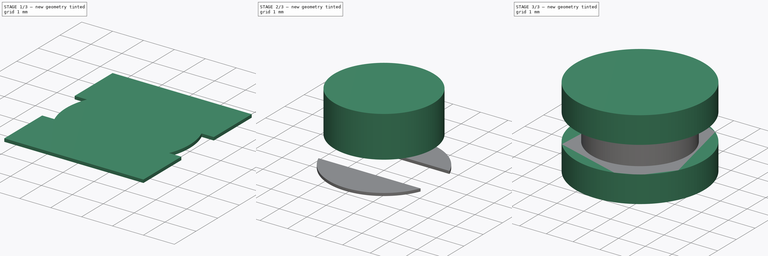
[diagram: build sequence overview — one tinted view per stage of 3, left to right]
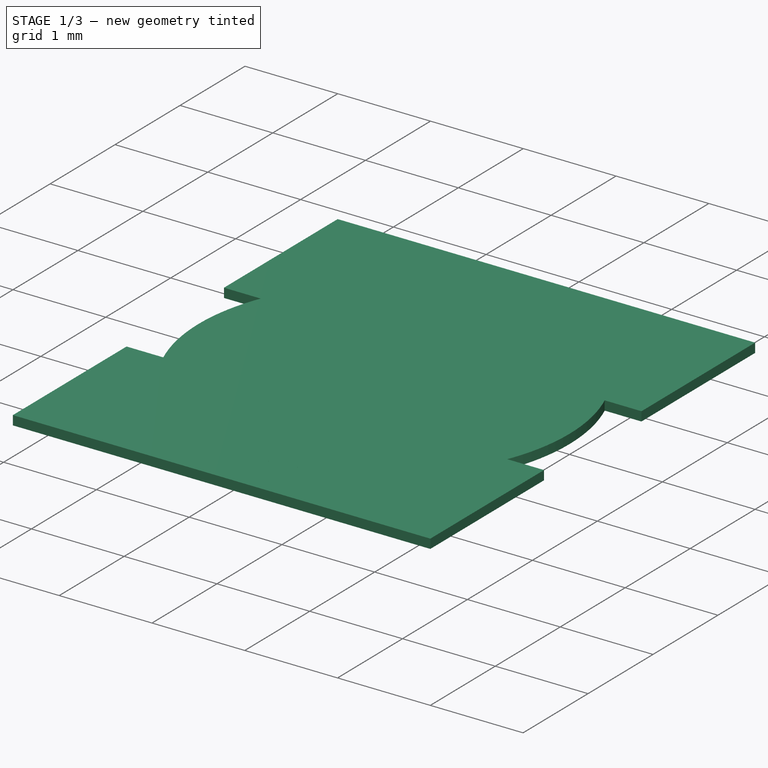
[diagram: stage 1 of 3 — iso view after this stage's code; geometry added in this stage tinted green]
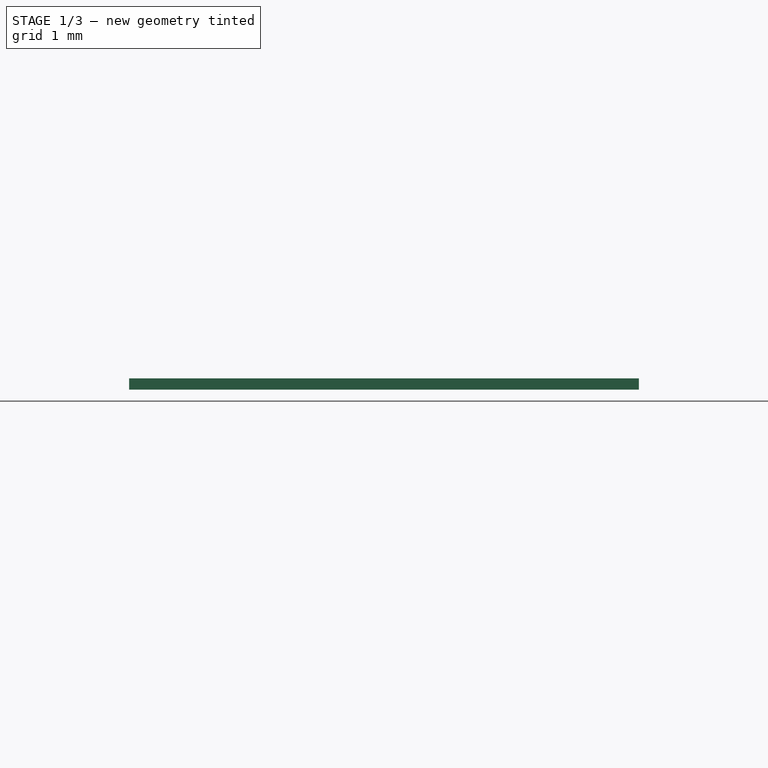
[diagram: stage 1 of 3 — front view after this stage's code; geometry added in this stage tinted green]
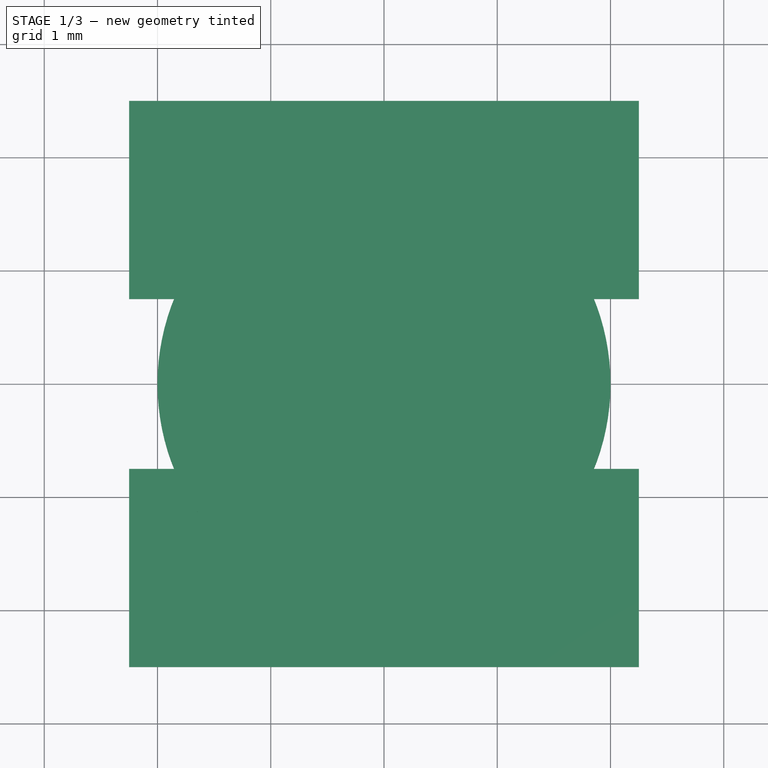
[diagram: stage 1 of 3 — top view after this stage's code; geometry added in this stage tinted green]
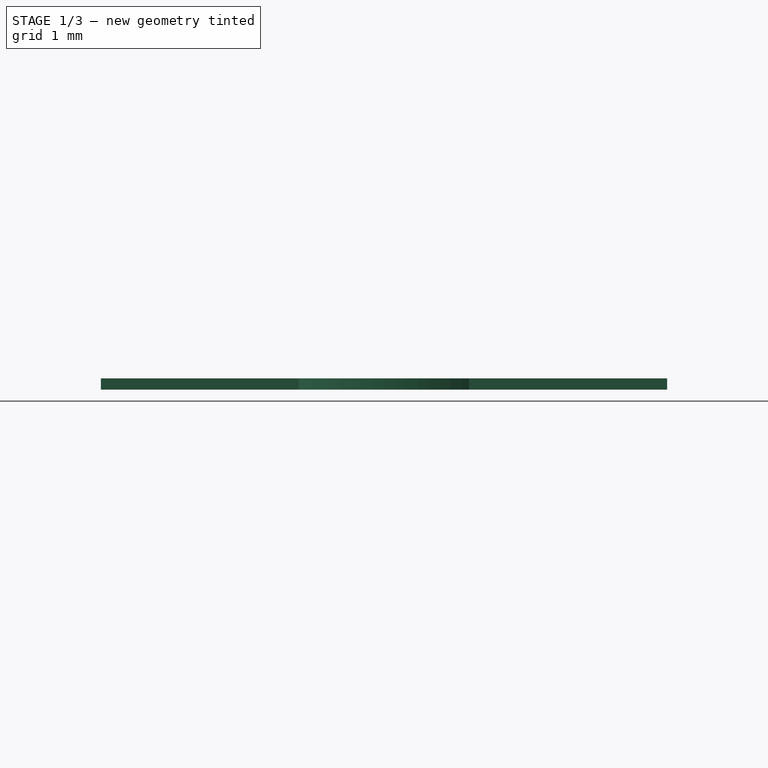
[diagram: stage 1 of 3 — right view after this stage's code; geometry added in this stage tinted green]
FCSTD DOCUMENT  (FreeCAD 0.16R6712 (Git))
Label: L_0403
License: All rights reserved
LicenseURL: http://en.wikipedia.org/wiki/All_rights_reserved
objects: Sketcher::SketchObject×3, PartDesign::Pad×3, Part::Feature×1, Part::Cylinder×1, Part::MultiCommon×1, Part::Compound×1
note: 13 computed .brp shape members not serialized (recipe doc carries the construction recipe); baked Part::Feature solids carry a one-line shape summary decoded from their .brp

FEATURE [Sketcher::SketchObject] Sketch
  sketch-geometry (8):
    g0: LineSegment StartX=-2.25 StartY=2.5 StartZ=0 EndX=2.25 EndY=2.5 EndZ=0
    g1: LineSegment StartX=2.25 StartY=2.5 StartZ=0 EndX=2.25 EndY=0.75 EndZ=0
    g2: LineSegment StartX=2.25 StartY=0.75 StartZ=0 EndX=-2.25 EndY=0.75 EndZ=0
    g3: LineSegment StartX=-2.25 StartY=0.75 StartZ=0 EndX=-2.25 EndY=2.5 EndZ=0
    g4: LineSegment StartX=-2.25 StartY=-0.75 StartZ=0 EndX=2.25 EndY=-0.75 EndZ=0
    g5: LineSegment StartX=2.25 StartY=-0.75 StartZ=0 EndX=2.25 EndY=-2.5 EndZ=0
    g6: LineSegment StartX=2.25 StartY=-2.5 StartZ=0 EndX=-2.25 EndY=-2.5 EndZ=0
    g7: LineSegment StartX=-2.25 StartY=-2.5 StartZ=0 EndX=-2.25 EndY=-0.75 EndZ=0
  constraints (24):
    c: Coincident(g0,g1)
    c: Coincident(g1,g2)
    c: Coincident(g2,g3)
    c: Coincident(g3,g0)
    c: Horizontal(g0)
    c: Horizontal(g2)
    c: Vertical(g1)
    c: Vertical(g3)
    c: Coincident(g4,g5)
    c: Coincident(g5,g6)
    c: Coincident(g6,g7)
    c: Coincident(g7,g4)
    c: Horizontal(g4)
    c: Horizontal(g6)
    c: Vertical(g5)
    c: Vertical(g7)
    c: DistanceX(g0,g0) = 4.5
    c: DistanceY(g1,g1) = 1.75
    c: Symmetric(g0,g0,g-2)
    c: Equal(g4,g0)
    c: Equal(g5,g1)
    c: Symmetric(g4,g4,g-2)
    c: Symmetric(g1,g4,g-1)
    c: DistanceY(g4,g1) = 1.5
FEATURE [PartDesign::Pad] Pad
  Length = 0.1
  Length2 = 100
  Sketch = -> Sketch
  Type = 0
FEATURE [Part::Feature] Pad001001  label="Pad003"
  Placement = pos=(0,0,2.1) rot=(0,0,1;0rad)
  shape: bbox 4.8 x 4.8 x 1 mm, 3 faces (baked)
FEATURE [Part::Cylinder] Cylinder
  Angle = 360
  Height = 0.1
  Radius = 2
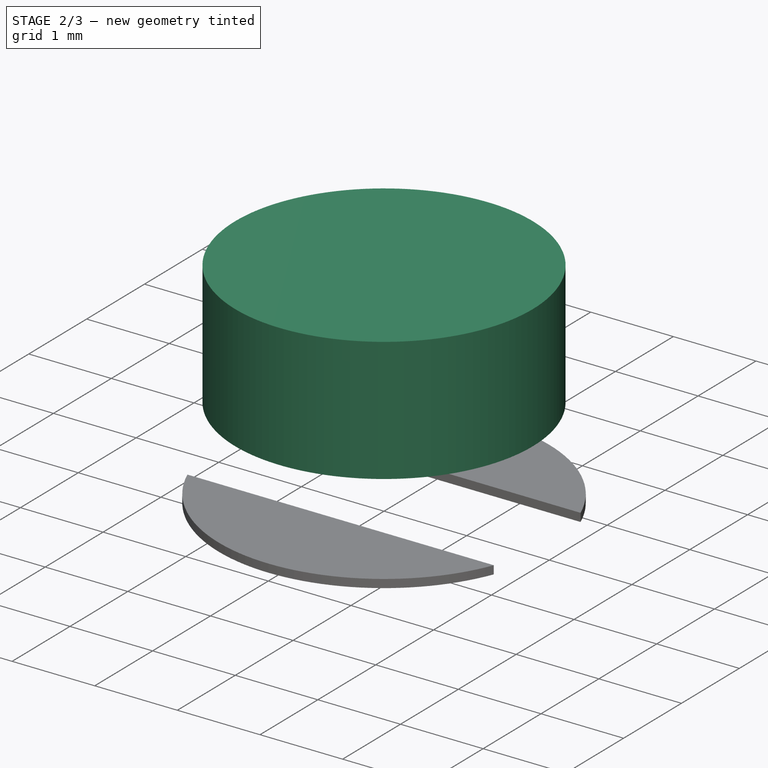
[diagram: stage 2 of 3 — iso view after this stage's code; geometry added in this stage tinted green]
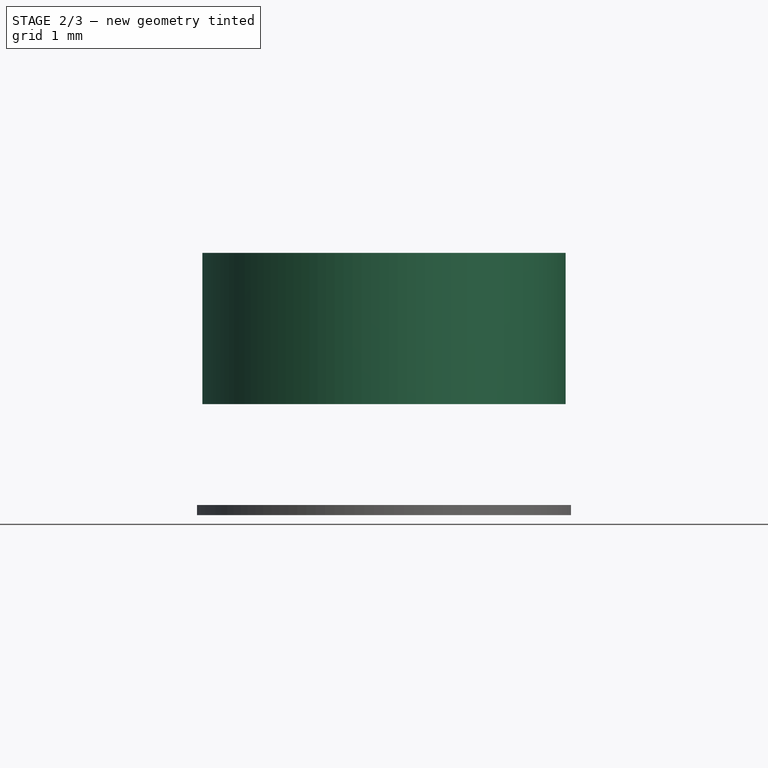
[diagram: stage 2 of 3 — front view after this stage's code; geometry added in this stage tinted green]
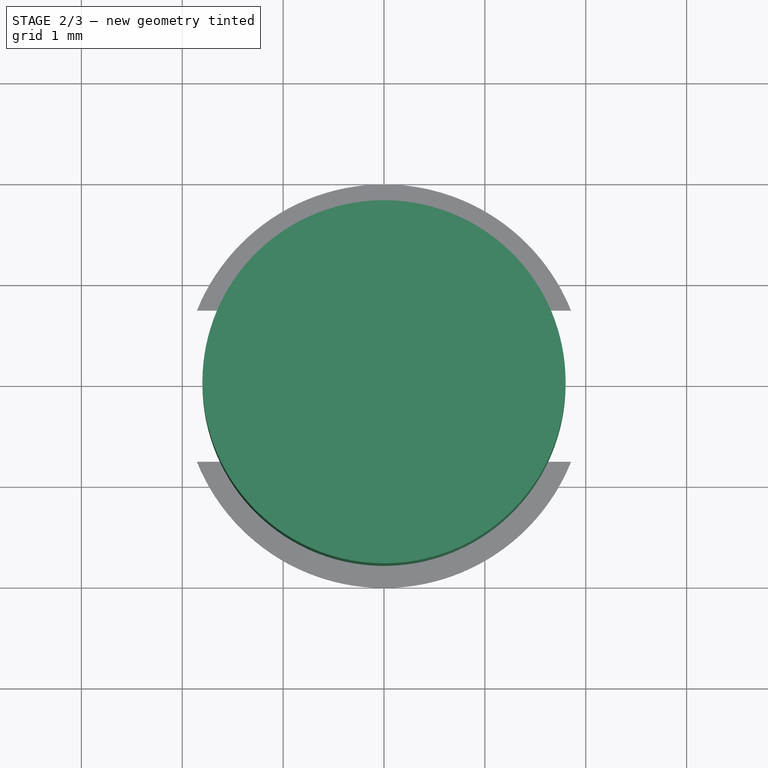
[diagram: stage 2 of 3 — top view after this stage's code; geometry added in this stage tinted green]
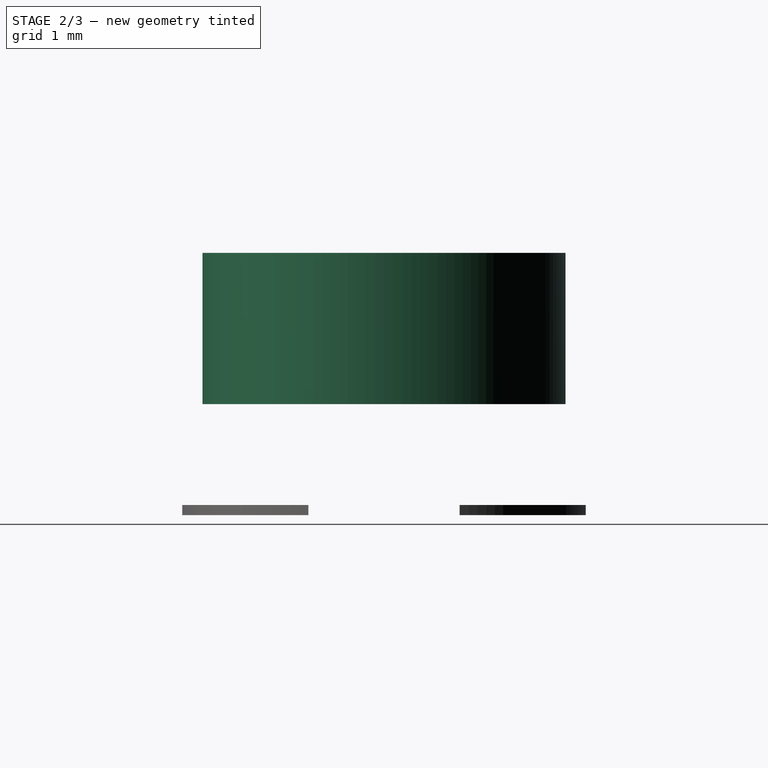
[diagram: stage 2 of 3 — right view after this stage's code; geometry added in this stage tinted green]
FEATURE [Sketcher::SketchObject] Sketch002
  Placement = pos=(0,0,1.1) rot=(0,0,1;0rad)
  sketch-geometry (1):
    g0: Circle CenterX=0 CenterY=0 CenterZ=0 NormalX=0 NormalY=0 NormalZ=1 Radius=1.8
  constraints (2):
    c: Coincident(g0,g-1)
    c: Radius(g0) = 1.8
FEATURE [PartDesign::Pad] Pad002
  Length = 1.5
  Length2 = 100
  Placement = pos=(0,0,1.1) rot=(0,0,1;0rad)
  Sketch = -> Sketch002
  Type = 0
FEATURE [Part::MultiCommon] Common
  Shapes = -> [Pad,Cylinder]
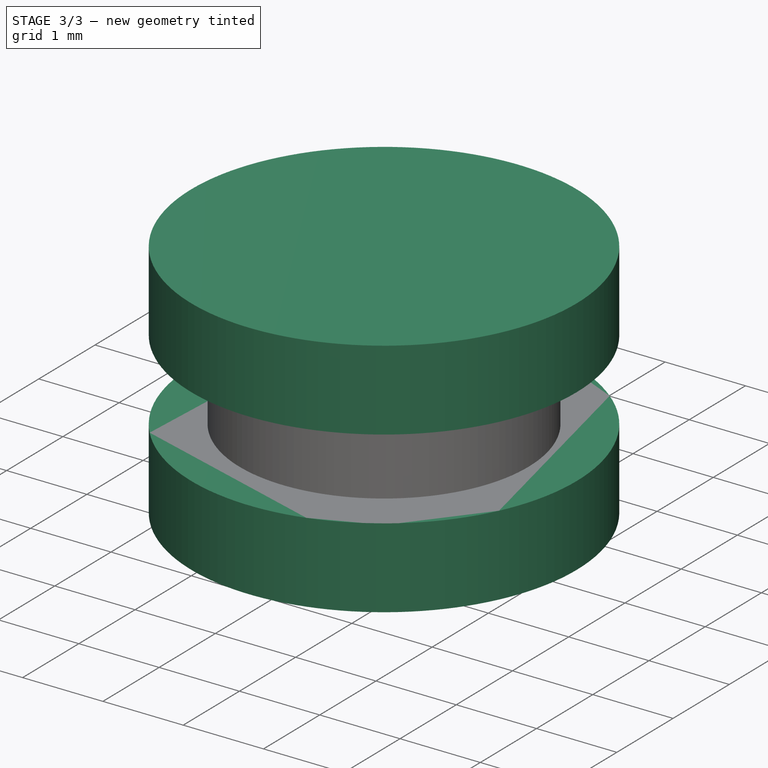
[diagram: stage 3 of 3 — iso view after this stage's code; geometry added in this stage tinted green]
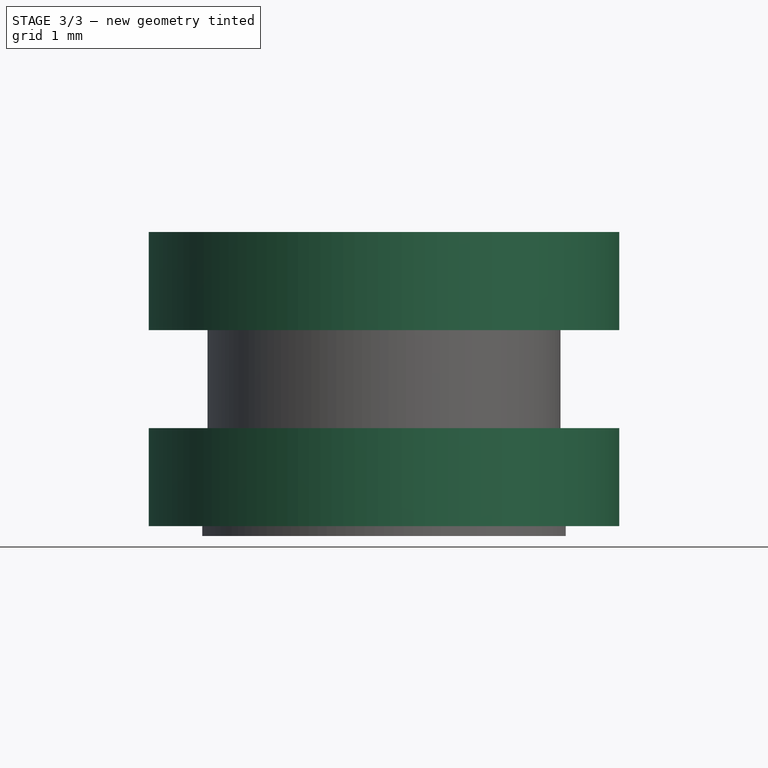
[diagram: stage 3 of 3 — front view after this stage's code; geometry added in this stage tinted green]
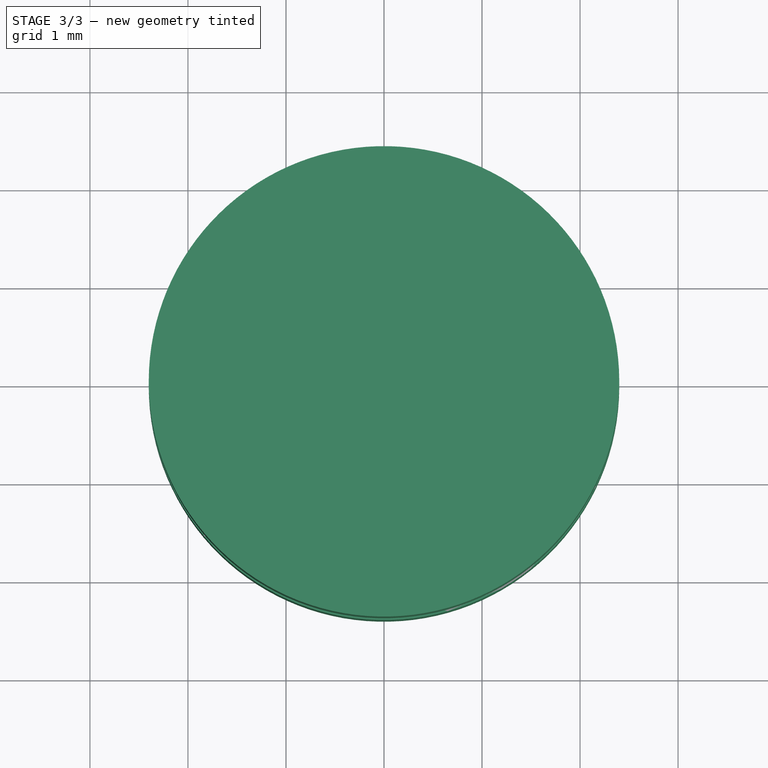
[diagram: stage 3 of 3 — top view after this stage's code; geometry added in this stage tinted green]
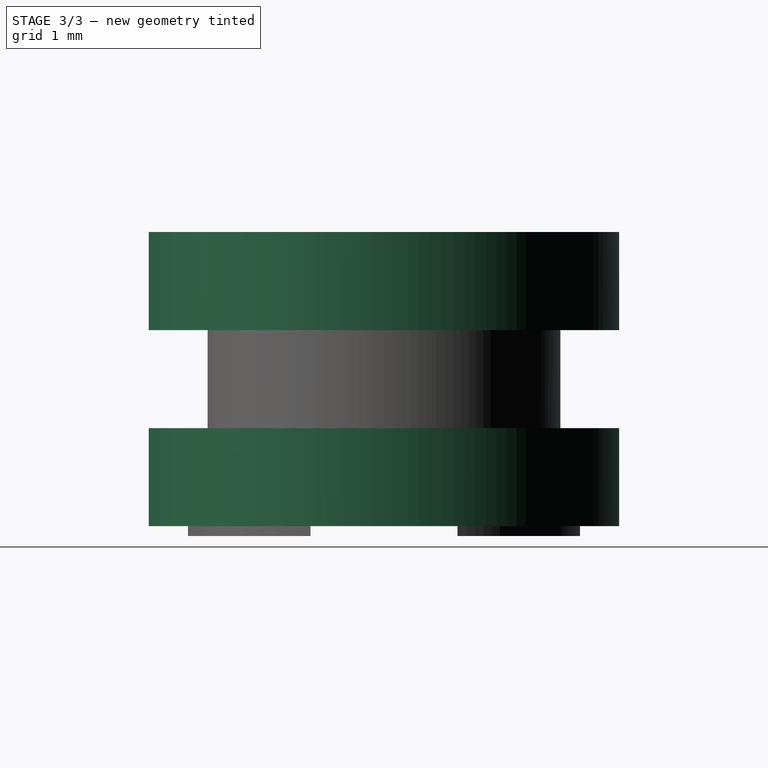
[diagram: stage 3 of 3 — right view after this stage's code; geometry added in this stage tinted green]
FEATURE [Sketcher::SketchObject] Sketch001
  Placement = pos=(0,0,0.1) rot=(0,0,1;0rad)
  sketch-geometry (1):
    g0: Circle CenterX=0 CenterY=0 CenterZ=0 NormalX=0 NormalY=0 NormalZ=1 Radius=2.4
  constraints (2):
    c: Coincident(g0,g-1)
    c: Radius(g0) = 2.4
FEATURE [PartDesign::Pad] Pad001
  Length = 1
  Length2 = 100
  Placement = pos=(0,0,0.1) rot=(0,0,1;0rad)
  Sketch = -> Sketch001
  Type = 0
FEATURE [Part::Compound] Compound
  Links = -> [Pad001,Pad002,Pad001001,Common]
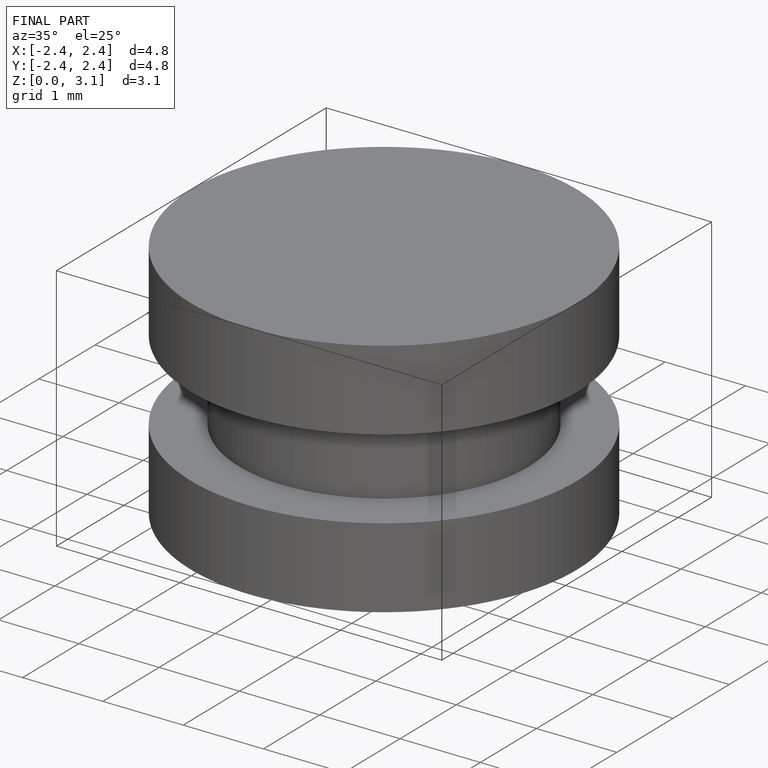
[diagram: finished part — iso view with bounding-box wireframe]
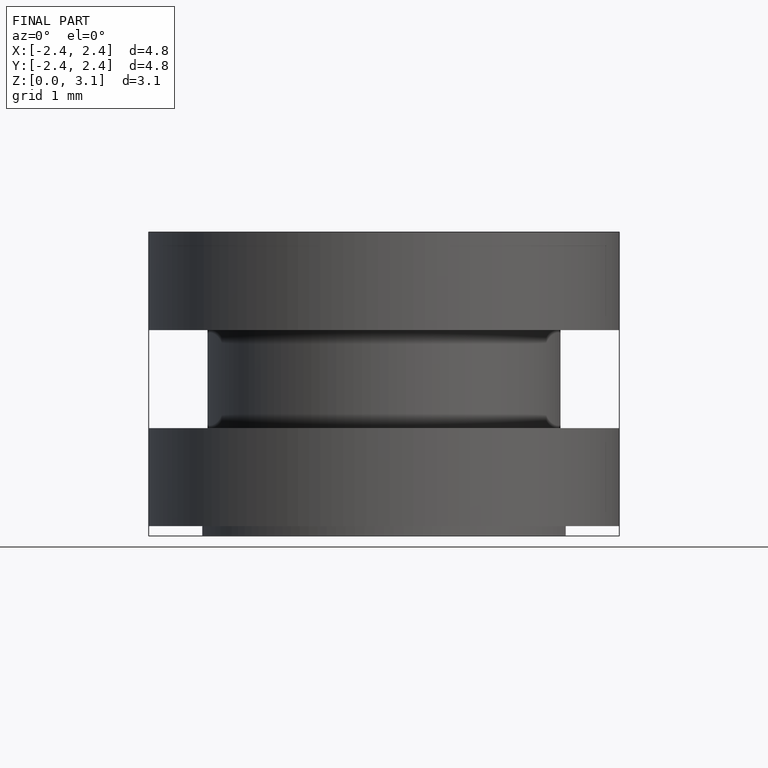
[diagram: finished part — front view with bounding-box wireframe]
